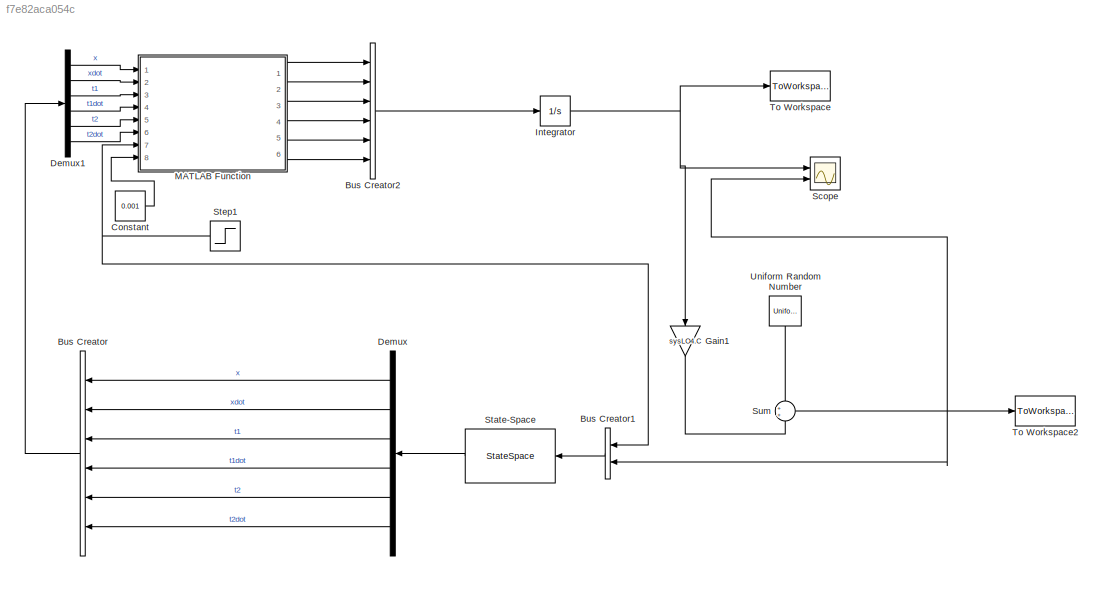
MODEL slx_f7e82aca054c
KIND model
CONFIG AbsTol = auto
CONFIG EnableMultiTasking = off
CONFIG FixedStep = auto
CONFIG MaxStep = auto
CONFIG MinStep = auto
CONFIG RelTol = 1e-3
CONFIG SampleTimeConstraint = Unconstrained
CONFIG Solver = VariableStepAuto
CONFIG SolverName = VariableStepAuto
CONFIG StartTime = 0.0
CONFIG StopTime = 100
BLOCK [BusCreator] Bus Creator
  DisplayOption = bar
  InheritFromInputs = on
  Inputs = 6
  Ports = [6, 1]
BLOCK [BusCreator] Bus Creator1
  DisplayOption = bar
  InheritFromInputs = on
  Inputs = 2
  Ports = [2, 1]
BLOCK [BusCreator] Bus Creator2
  DisplayOption = bar
  InheritFromInputs = on
  Inputs = 6
  Ports = [6, 1]
BLOCK [Constant] Constant
  SampleTime = -1
  Value = 0.001
BLOCK [Demux] Demux
  DisplayOption = bar
  Outputs = 6
  Ports = [1, 6]
BLOCK [Demux] Demux1
  DisplayOption = bar
  Outputs = 6
  Ports = [1, 6]
BLOCK [Gain] Gain1
  Gain = sysLO4.C
  Multiplication = Matrix(K*u)
  OutDataTypeStr = Inherit: Inherit via internal rule
  ParamDataTypeStr = Inherit: Inherit via internal rule
  SaturateOnIntegerOverflow = off
BLOCK [Integrator] Integrator
  InitialCondition = [0;0;0;0;0;0]
  Ports = [1, 1]
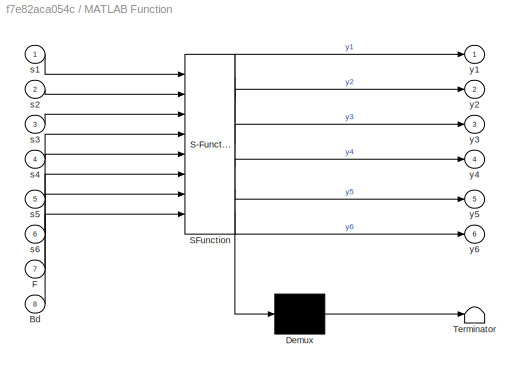
BLOCK [SubSystem] MATLAB Function
  ErrorFcn = Stateflow.Translate.translate
  PermitHierarchicalResolution = ExplicitOnly
  Ports = [8, 6]
  RequestExecContextInheritance = off
  SFBlockType = MATLAB Function
  TreatAsAtomicUnit = on
BLOCK [Demux] MATLAB Function/ Demux 
  Outputs = 1
  Ports = [1, 1]
BLOCK [S-Function] MATLAB Function/ SFunction 
  EnableBusSupport = on
  FunctionName = sf_sfun
  PortCounts = [8 7]
  Ports = [8, 7]
  SFcnIsStateOwnerBlock = off
  SFunctionDeploymentMode = off
  Tag = Stateflow S-Function nonlinearLO4 2
BLOCK [Terminator] MATLAB Function/ Terminator 
BLOCK [Inport] MATLAB Function/Bd
  IconDisplay = Port number
  Port = 8
BLOCK [Inport] MATLAB Function/F
  IconDisplay = Port number
  Port = 7
BLOCK [Inport] MATLAB Function/s1
  IconDisplay = Port number
BLOCK [Inport] MATLAB Function/s2
  IconDisplay = Port number
  Port = 2
BLOCK [Inport] MATLAB Function/s3
  IconDisplay = Port number
  Port = 3
BLOCK [Inport] MATLAB Function/s4
  IconDisplay = Port number
  Port = 4
BLOCK [Inport] MATLAB Function/s5
  IconDisplay = Port number
  Port = 5
BLOCK [Inport] MATLAB Function/s6
  IconDisplay = Port number
  Port = 6
BLOCK [Outport] MATLAB Function/y1
  IconDisplay = Port number
BLOCK [Outport] MATLAB Function/y2
  IconDisplay = Port number
  Port = 2
BLOCK [Outport] MATLAB Function/y3
  IconDisplay = Port number
  Port = 3
BLOCK [Outport] MATLAB Function/y4
  IconDisplay = Port number
  Port = 4
BLOCK [Outport] MATLAB Function/y5
  IconDisplay = Port number
  Port = 5
BLOCK [Outport] MATLAB Function/y6
  IconDisplay = Port number
  Port = 6
BLOCK [Scope] Scope
  Floating = off
  NumInputPorts = 2
  Ports = [2]
  ScopeSpecificationString = Simulink.scopes.TimeScopeBlockCfg('CurrentConfiguration', extmgr.ConfigurationSet(extmgr.Configuration('Core','General UI',true),extmgr.Configuration('Core','Source UI',true),extmgr.Configuration('Sources','WiredSimulink',true),extmgr.Configuration('Visuals','Time Domain',true,'SerializedDisplays',{struct('MinYLimReal','-0.31197','MaxYLimReal','2.80764','YLabelReal','','MinYLimMag','0.00000','MaxY...<+1436ch>
BLOCK [StateSpace] State-Space
  A = sysLO4.a
  B = sysLO4.b
  C = eye(6)
  D = zeros(6,4)
  InitialCondition = 0
  Ports = [1, 1]
BLOCK [Step] Step1
  SampleTime = 0
  Time = 20
BLOCK [Sum] Sum
  IconShape = round
  InputSameDT = off
  OutDataTypeStr = Inherit: Inherit via internal rule
  Ports = [2, 1]
  SaturateOnIntegerOverflow = off
BLOCK [ToWorkspace] To Workspace
  FixptAsFi = on
  MaxDataPoints = inf
  Ports = [1]
  SampleTime = -1
  VariableName = states4
BLOCK [ToWorkspace] To Workspace2
  FixptAsFi = on
  MaxDataPoints = inf
  Ports = [1]
  SampleTime = -1
  VariableName = out4
BLOCK [UniformRandomNumber] Uniform Random Number
  Maximum = 0.1
  Minimum = -0.1
  SampleTime = 0.1
LINE Bus Creator1:1 -> State-Space:1
LINE Bus Creator2:1 -> Integrator:1
LINE Bus Creator:1 -> Demux1:1
LINE Constant:1 -> MATLAB Function:8
LINE Demux1:1 -> MATLAB Function:1
LINE Demux1:2 -> MATLAB Function:2
LINE Demux1:3 -> MATLAB Function:3
LINE Demux1:4 -> MATLAB Function:4
LINE Demux1:5 -> MATLAB Function:5
LINE Demux1:6 -> MATLAB Function:6
LINE Demux:1 -> Bus Creator:1
LINE Demux:2 -> Bus Creator:2
LINE Demux:3 -> Bus Creator:3
LINE Demux:4 -> Bus Creator:4
LINE Demux:5 -> Bus Creator:5
LINE Demux:6 -> Bus Creator:6
LINE Gain1:1 -> Sum:2
NET Integrator:1 -> Gain1:1, Scope:1, To Workspace:1
LINE MATLAB Function:1 -> Bus Creator2:1
LINE MATLAB Function:2 -> Bus Creator2:2
LINE MATLAB Function:3 -> Bus Creator2:3
LINE MATLAB Function:4 -> Bus Creator2:4
LINE MATLAB Function:5 -> Bus Creator2:5
LINE MATLAB Function:6 -> Bus Creator2:6
LINE State-Space:1 -> Demux:1
NET Step1:1 -> Bus Creator1:1, MATLAB Function:7
NET Sum:1 -> Bus Creator1:2, Scope:2, To Workspace2:1
LINE Uniform Random Number:1 -> Sum:1
note: NET lines group one-source signal fan-out (src -> all destinations, sorted); 1:1 wires keep LINE
CHART MATLAB Function states=1 transitions=1
  STATE_LABEL 'eML_blk_kernel()'
  STATE_LABEL 'SCRIPT:\nfunction [y1,y2,y3,y4,y5,y6]  = nonlinearlqg(s1,s2,s3,s4,s5,s6,F,Bd)\n\nparams.M = 1000; %mass of cart 1000\nparams.m1 = 100; %mass of bob 1 100\nparams.m2 = 100; %mass of bob 2 100\nparams.l1 = 20;  %length of link of first pendulum 20\nparams.l2 = 10;  %length of link of second pendulum 10\nparams.g = 10; %acceleration due to gravitaion 9.81\nuD = randn(6,1);\nx = s1;\nx_dot = s2;\nt1 = s3;\nt1_dot ...<+1008ch>'
